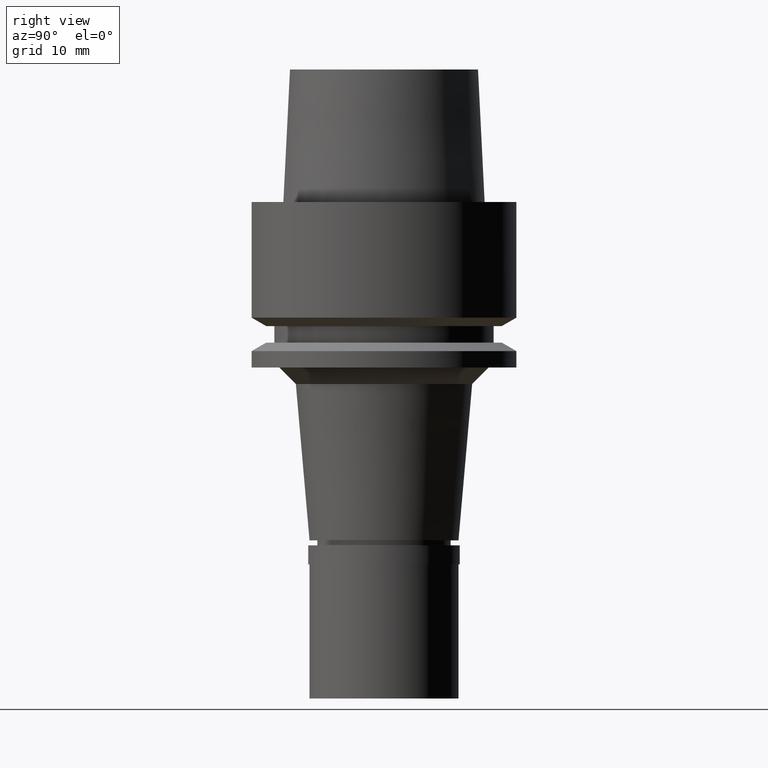
[diagram: clean part render]
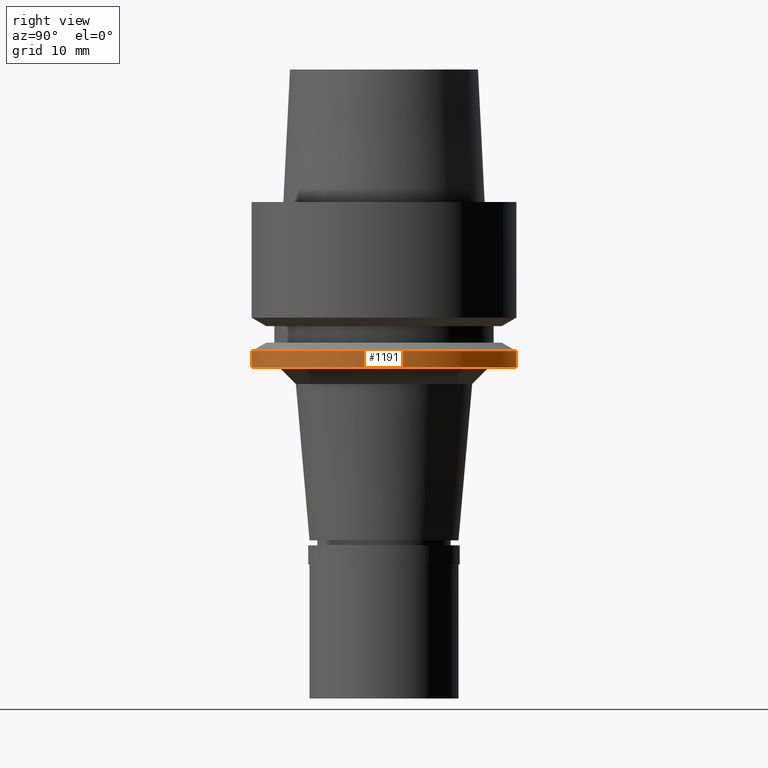
[diagram: same view with one face highlighted and labeled with its STEP entity id]
A machine part, right view. The second image highlights one B-rep face of the part: STEP entity #1191.
In plain terms, the highlighted cylindrical surface (partial cylindrical patch) has radius 16 mm, axis along (0, 0, -1).
Its self-contained STEP definition (entity closure, byte-faithful):
#143 = EDGE_CURVE ( 'NONE', #1524, #2440, #1491, .T. ) ;
#156 = VECTOR ( 'NONE', #2403, 1000.000000000000000 ) ;
#336 = LINE ( 'NONE', #2209, #156 ) ;
#355 = VERTEX_POINT ( 'NONE', #1126 ) ;
#598 = CIRCLE ( 'NONE', #726, 16.00000000000000000 ) ;
#726 = AXIS2_PLACEMENT_3D ( 'NONE', #1338, #929, #2619 ) ;
#835 = CARTESIAN_POINT ( 'NONE',  ( 0.0000000000000000000, 16.00000000000000000, -18.02072594216000212 ) ) ;
#929 = DIRECTION ( 'NONE',  ( 0.0000000000000000000, 0.0000000000000000000, 1.000000000000000000 ) ) ;
#1060 = DIRECTION ( 'NONE',  ( 0.0000000000000000000, 1.000000000000000000, 0.0000000000000000000 ) ) ;
#1126 = CARTESIAN_POINT ( 'NONE',  ( 0.0000000000000000000, -16.00000000000000000, -20.00000000000000000 ) ) ;
#1174 = ORIENTED_EDGE ( 'NONE', *, *, #1738, .T. ) ;
#1190 = ORIENTED_EDGE ( 'NONE', *, *, #143, .F. ) ;
#1191 = ADVANCED_FACE ( 'NONE', ( #1761 ), #1955, .T. ) ;
#1226 = CARTESIAN_POINT ( 'NONE',  ( 0.0000000000000000000, -16.00000000000000000, -18.02072594216000212 ) ) ;
#1272 = ORIENTED_EDGE ( 'NONE', *, *, #1831, .T. ) ;
#1296 = DIRECTION ( 'NONE',  ( 0.0000000000000000000, 4.783562901008000077E-13, -1.000000000000000000 ) ) ;
#1338 = CARTESIAN_POINT ( 'NONE',  ( 0.0000000000000000000, 0.0000000000000000000, -20.00000000000000000 ) ) ;
#1343 = CARTESIAN_POINT ( 'NONE',  ( 0.0000000000000000000, 16.00000000000000000, -20.00000000000000000 ) ) ;
#1394 = ORIENTED_EDGE ( 'NONE', *, *, #2674, .T. ) ;
#1491 = LINE ( 'NONE', #2360, #2456 ) ;
#1503 = VERTEX_POINT ( 'NONE', #1226 ) ;
#1524 = VERTEX_POINT ( 'NONE', #835 ) ;
#1585 = AXIS2_PLACEMENT_3D ( 'NONE', #2166, #1974, #2398 ) ;
#1738 = EDGE_CURVE ( 'NONE', #1503, #355, #336, .T. ) ;
#1761 = FACE_OUTER_BOUND ( 'NONE', #1869, .T. ) ;
#1831 = EDGE_CURVE ( 'NONE', #1524, #1503, #2244, .T. ) ;
#1869 = EDGE_LOOP ( 'NONE', ( #1272, #1174, #1394, #1190 ) ) ;
#1890 = DIRECTION ( 'NONE',  ( 0.0000000000000000000, 0.0000000000000000000, -1.000000000000000000 ) ) ;
#1955 = CYLINDRICAL_SURFACE ( 'NONE', #1585, 16.00000000000000000 ) ;
#1974 = DIRECTION ( 'NONE',  ( 0.0000000000000000000, 0.0000000000000000000, -1.000000000000000000 ) ) ;
#2166 = CARTESIAN_POINT ( 'NONE',  ( 0.0000000000000000000, 0.0000000000000000000, 19.57000000000000028 ) ) ;
#2209 = CARTESIAN_POINT ( 'NONE',  ( 0.0000000000000000000, -16.00000000000000000, -18.02072594216000212 ) ) ;
#2244 = CIRCLE ( 'NONE', #2553, 16.00000000000000000 ) ;
#2311 = CARTESIAN_POINT ( 'NONE',  ( 0.0000000000000000000, 0.0000000000000000000, -18.02072594216000212 ) ) ;
#2360 = CARTESIAN_POINT ( 'NONE',  ( 0.0000000000000000000, 16.00000000000000000, -18.02072594216000212 ) ) ;
#2398 = DIRECTION ( 'NONE',  ( 0.0000000000000000000, -1.000000000000000000, 0.0000000000000000000 ) ) ;
#2403 = DIRECTION ( 'NONE',  ( 0.0000000000000000000, -4.783562901008000077E-13, -1.000000000000000000 ) ) ;
#2440 = VERTEX_POINT ( 'NONE', #1343 ) ;
#2456 = VECTOR ( 'NONE', #1296, 1000.000000000000000 ) ;
#2553 = AXIS2_PLACEMENT_3D ( 'NONE', #2311, #1890, #1060 ) ;
#2619 = DIRECTION ( 'NONE',  ( 0.0000000000000000000, -1.000000000000000000, 0.0000000000000000000 ) ) ;
#2674 = EDGE_CURVE ( 'NONE', #355, #2440, #598, .T. ) ;